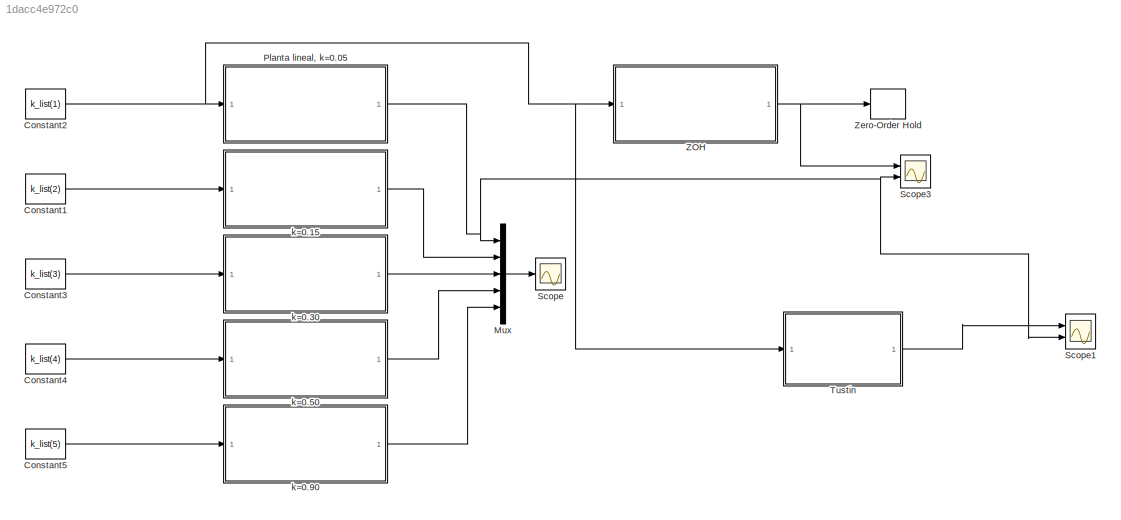
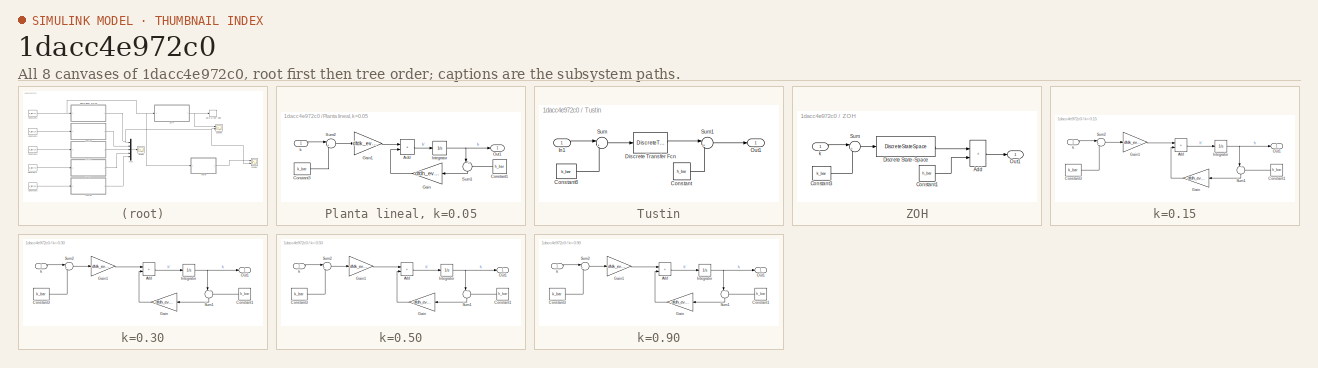
[diagram: thumbnail index - all 8 canvases of the model, root first then tree order]
MODEL slx_1dacc4e972c0
KIND model
CONFIG AbsTol = auto
CONFIG EnableMultiTasking = off
CONFIG FixedStep = auto
CONFIG MaxStep = auto
CONFIG MinStep = auto
CONFIG RelTol = 1e-3
CONFIG SampleTimeConstraint = Unconstrained
CONFIG SolverName = VariableStepAuto
CONFIG StartTime = 0.0
CONFIG StopTime = 60.0
BLOCK [Constant] Constant1
  Value = k_list(2)
BLOCK [Constant] Constant2
  Value = k_list(1)
BLOCK [Constant] Constant3
  Value = k_list(3)
BLOCK [Constant] Constant4
  Value = k_list(4)
BLOCK [Constant] Constant5
  Value = k_list(5)
BLOCK [Mux] Mux
  DisplayOption = bar
  Inputs = 5
  Ports = [5, 1]
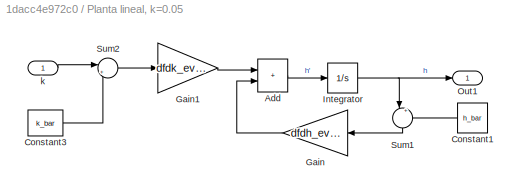
BLOCK [SubSystem] Planta lineal, k=0.05
  Ports = [1, 1]
  RequestExecContextInheritance = off
BLOCK [Sum] Planta lineal, k=0.05/Add
  IconShape = rectangular
  Ports = [2, 1]
BLOCK [Constant] Planta lineal, k=0.05/Constant1
  NameLocation = top
  Value = h_bar
BLOCK [Constant] Planta lineal, k=0.05/Constant3
  Value = k_bar
BLOCK [Gain] Planta lineal, k=0.05/Gain
  Gain = dfdh_eval
  NameLocation = top
BLOCK [Gain] Planta lineal, k=0.05/Gain1
  Gain = dfdk_eval
BLOCK [Integrator] Planta lineal, k=0.05/Integrator
  InitialCondition = h_bar
  Ports = [1, 1]
BLOCK [Outport] Planta lineal, k=0.05/Out1
BLOCK [Sum] Planta lineal, k=0.05/Sum1
  Inputs = |+-
  NameLocation = left
  Ports = [2, 1]
BLOCK [Sum] Planta lineal, k=0.05/Sum2
  Inputs = |+-
  Ports = [2, 1]
BLOCK [Inport] Planta lineal, k=0.05/k
BLOCK [Scope] Scope
  Floating = off
  NumInputPorts = 1
  Ports = [1]
  ScopeSpecificationString = Simulink.scopes.TimeScopeBlockCfg('CurrentConfiguration', extmgr.ConfigurationSet(extmgr.Configuration('Core','General UI',true),extmgr.Configuration('Core','Source UI',true),extmgr.Configuration('Sources','WiredSimulink',true),extmgr.Configuration('Visuals','Time Domain',true,'SerializedDisplays',{struct('MinYLimReal','0.24209','MaxYLimReal','0.99819','YLabelReal','','MinYLimMag','0.24209','MaxYL...<+1810ch>
BLOCK [Scope] Scope1
  Floating = off
  NumInputPorts = 2
  Ports = [2]
  ScopeSpecificationString = Simulink.scopes.TimeScopeBlockCfg('CurrentConfiguration', extmgr.ConfigurationSet(extmgr.Configuration('Core','General UI',true),extmgr.Configuration('Core','Source UI',true),extmgr.Configuration('Sources','WiredSimulink',true,'DataLoggingVariableName','ScopeData1'),extmgr.Configuration('Visuals','Time Domain',true,'SerializedDisplays',{struct('MinYLimReal','0.55912','MaxYLimReal','0.96791','YLabe...<+1459ch>
BLOCK [Scope] Scope3
  Floating = off
  NumInputPorts = 2
  Ports = [2]
  ScopeSpecificationString = Simulink.scopes.TimeScopeBlockCfg('CurrentConfiguration', extmgr.ConfigurationSet(extmgr.Configuration('Core','General UI',true),extmgr.Configuration('Core','Source UI',true),extmgr.Configuration('Sources','WiredSimulink',true,'DataLoggingVariableName','ScopeData3'),extmgr.Configuration('Visuals','Time Domain',true,'SerializedDisplays',{struct('MinYLimReal','0.55968','MaxYLimReal','0.9629','YLabel...<+1407ch>
BLOCK [SubSystem] Tustin
  Ports = [1, 1]
  RequestExecContextInheritance = off
BLOCK [Constant] Tustin/Constant
  Value = h_bar
BLOCK [Constant] Tustin/Constant6
  Value = k_bar
BLOCK [DiscreteTransferFcn] Tustin/Discrete Transfer Fcn
  Denominator = den
  InputPortMap = u0
  Numerator = num
  Ports = [1, 1]
  SampleTime = 2
BLOCK [Inport] Tustin/In1
BLOCK [Outport] Tustin/Out1
BLOCK [Sum] Tustin/Sum
  Inputs = |+-
  Ports = [2, 1]
BLOCK [Sum] Tustin/Sum1
  Inputs = |++
  Ports = [2, 1]
BLOCK [SubSystem] ZOH
  Ports = [1, 1]
  RequestExecContextInheritance = off
BLOCK [Sum] ZOH/Add
  IconShape = rectangular
  Ports = [2, 1]
BLOCK [Constant] ZOH/Constant1
  Value = h_bar
BLOCK [Constant] ZOH/Constant3
  Value = k_bar
BLOCK [DiscreteStateSpace] ZOH/Discrete State-Space
  A = A_d
  B = B_d
  D = 0
  SampleTime = Ts
BLOCK [Outport] ZOH/Out1
BLOCK [Sum] ZOH/Sum
  Inputs = |+-
  Ports = [2, 1]
BLOCK [Inport] ZOH/k
BLOCK [ZeroOrderHold] Zero-Order Hold
  Commented = on
  SampleTime = T
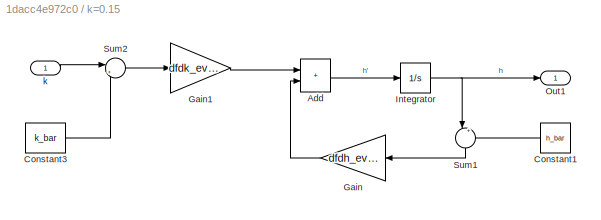
BLOCK [SubSystem] k=0.15
  Ports = [1, 1]
  RequestExecContextInheritance = off
BLOCK [Sum] k=0.15/Add
  IconShape = rectangular
  Ports = [2, 1]
BLOCK [Constant] k=0.15/Constant1
  NameLocation = top
  Value = h_bar
BLOCK [Constant] k=0.15/Constant3
  Value = k_bar
BLOCK [Gain] k=0.15/Gain
  Gain = dfdh_eval
  NameLocation = top
BLOCK [Gain] k=0.15/Gain1
  Gain = dfdk_eval
BLOCK [Integrator] k=0.15/Integrator
  InitialCondition = h_bar
  Ports = [1, 1]
BLOCK [Outport] k=0.15/Out1
BLOCK [Sum] k=0.15/Sum1
  Inputs = |+-
  NameLocation = left
  Ports = [2, 1]
BLOCK [Sum] k=0.15/Sum2
  Inputs = |+-
  Ports = [2, 1]
BLOCK [Inport] k=0.15/k
BLOCK [SubSystem] k=0.30
  Ports = [1, 1]
  RequestExecContextInheritance = off
BLOCK [Sum] k=0.30/Add
  IconShape = rectangular
  Ports = [2, 1]
BLOCK [Constant] k=0.30/Constant1
  NameLocation = top
  Value = h_bar
BLOCK [Constant] k=0.30/Constant3
  Value = k_bar
BLOCK [Gain] k=0.30/Gain
  Gain = dfdh_eval
  NameLocation = top
BLOCK [Gain] k=0.30/Gain1
  Gain = dfdk_eval
BLOCK [Integrator] k=0.30/Integrator
  InitialCondition = h_bar
  Ports = [1, 1]
BLOCK [Outport] k=0.30/Out1
BLOCK [Sum] k=0.30/Sum1
  Inputs = |+-
  NameLocation = left
  Ports = [2, 1]
BLOCK [Sum] k=0.30/Sum2
  Inputs = |+-
  Ports = [2, 1]
BLOCK [Inport] k=0.30/k
BLOCK [SubSystem] k=0.50
  Ports = [1, 1]
  RequestExecContextInheritance = off
BLOCK [Sum] k=0.50/Add
  IconShape = rectangular
  Ports = [2, 1]
BLOCK [Constant] k=0.50/Constant1
  NameLocation = top
  Value = h_bar
BLOCK [Constant] k=0.50/Constant3
  Value = k_bar
BLOCK [Gain] k=0.50/Gain
  Gain = dfdh_eval
  NameLocation = top
BLOCK [Gain] k=0.50/Gain1
  Gain = dfdk_eval
BLOCK [Integrator] k=0.50/Integrator
  InitialCondition = h_bar
  Ports = [1, 1]
BLOCK [Outport] k=0.50/Out1
BLOCK [Sum] k=0.50/Sum1
  Inputs = |+-
  NameLocation = left
  Ports = [2, 1]
BLOCK [Sum] k=0.50/Sum2
  Inputs = |+-
  Ports = [2, 1]
BLOCK [Inport] k=0.50/k
BLOCK [SubSystem] k=0.90
  Ports = [1, 1]
  RequestExecContextInheritance = off
BLOCK [Sum] k=0.90/Add
  IconShape = rectangular
  Ports = [2, 1]
BLOCK [Constant] k=0.90/Constant1
  NameLocation = top
  Value = h_bar
BLOCK [Constant] k=0.90/Constant3
  Value = k_bar
BLOCK [Gain] k=0.90/Gain
  Gain = dfdh_eval
  NameLocation = top
BLOCK [Gain] k=0.90/Gain1
  Gain = dfdk_eval
BLOCK [Integrator] k=0.90/Integrator
  InitialCondition = h_bar
  Ports = [1, 1]
BLOCK [Outport] k=0.90/Out1
BLOCK [Sum] k=0.90/Sum1
  Inputs = |+-
  NameLocation = left
  Ports = [2, 1]
BLOCK [Sum] k=0.90/Sum2
  Inputs = |+-
  Ports = [2, 1]
BLOCK [Inport] k=0.90/k
LINE Constant1:1 -> k=0.15:1
NET Constant2:1 -> Planta lineal, k=0.05:1, Tustin:1, ZOH:1
LINE Constant3:1 -> k=0.30:1
LINE Constant4:1 -> k=0.50:1
LINE Constant5:1 -> k=0.90:1
LINE Mux:1 -> Scope:1
LINE Planta lineal, k=0.05/Add:1 -> Planta lineal, k=0.05/Integrator:1
LINE Planta lineal, k=0.05/Constant1:1 -> Planta lineal, k=0.05/Sum1:2
LINE Planta lineal, k=0.05/Constant3:1 -> Planta lineal, k=0.05/Sum2:2
LINE Planta lineal, k=0.05/Gain1:1 -> Planta lineal, k=0.05/Add:1
LINE Planta lineal, k=0.05/Gain:1 -> Planta lineal, k=0.05/Add:2
NET Planta lineal, k=0.05/Integrator:1 -> Planta lineal, k=0.05/Out1:1, Planta lineal, k=0.05/Sum1:1
LINE Planta lineal, k=0.05/Sum1:1 -> Planta lineal, k=0.05/Gain:1
LINE Planta lineal, k=0.05/Sum2:1 -> Planta lineal, k=0.05/Gain1:1
LINE Planta lineal, k=0.05/k:1 -> Planta lineal, k=0.05/Sum2:1
NET Planta lineal, k=0.05:1 -> Mux:1, Scope1:2, Scope3:2
LINE Tustin/Constant6:1 -> Tustin/Sum:2
LINE Tustin/Constant:1 -> Tustin/Sum1:2
LINE Tustin/Discrete Transfer Fcn:1 -> Tustin/Sum1:1
LINE Tustin/In1:1 -> Tustin/Sum:1
LINE Tustin/Sum1:1 -> Tustin/Out1:1
LINE Tustin/Sum:1 -> Tustin/Discrete Transfer Fcn:1
LINE Tustin:1 -> Scope1:1
LINE ZOH/Add:1 -> ZOH/Out1:1
LINE ZOH/Constant1:1 -> ZOH/Add:2
LINE ZOH/Constant3:1 -> ZOH/Sum:2
LINE ZOH/Discrete State-Space:1 -> ZOH/Add:1
LINE ZOH/Sum:1 -> ZOH/Discrete State-Space:1
LINE ZOH/k:1 -> ZOH/Sum:1
NET ZOH:1 -> Scope3:1, Zero-Order Hold:1
LINE k=0.15/Add:1 -> k=0.15/Integrator:1
LINE k=0.15/Constant1:1 -> k=0.15/Sum1:2
LINE k=0.15/Constant3:1 -> k=0.15/Sum2:2
LINE k=0.15/Gain1:1 -> k=0.15/Add:1
LINE k=0.15/Gain:1 -> k=0.15/Add:2
NET k=0.15/Integrator:1 -> k=0.15/Out1:1, k=0.15/Sum1:1
LINE k=0.15/Sum1:1 -> k=0.15/Gain:1
LINE k=0.15/Sum2:1 -> k=0.15/Gain1:1
LINE k=0.15/k:1 -> k=0.15/Sum2:1
LINE k=0.15:1 -> Mux:2
LINE k=0.30/Add:1 -> k=0.30/Integrator:1
LINE k=0.30/Constant1:1 -> k=0.30/Sum1:2
LINE k=0.30/Constant3:1 -> k=0.30/Sum2:2
LINE k=0.30/Gain1:1 -> k=0.30/Add:1
LINE k=0.30/Gain:1 -> k=0.30/Add:2
NET k=0.30/Integrator:1 -> k=0.30/Out1:1, k=0.30/Sum1:1
LINE k=0.30/Sum1:1 -> k=0.30/Gain:1
LINE k=0.30/Sum2:1 -> k=0.30/Gain1:1
LINE k=0.30/k:1 -> k=0.30/Sum2:1
LINE k=0.30:1 -> Mux:3
LINE k=0.50/Add:1 -> k=0.50/Integrator:1
LINE k=0.50/Constant1:1 -> k=0.50/Sum1:2
LINE k=0.50/Constant3:1 -> k=0.50/Sum2:2
LINE k=0.50/Gain1:1 -> k=0.50/Add:1
LINE k=0.50/Gain:1 -> k=0.50/Add:2
NET k=0.50/Integrator:1 -> k=0.50/Out1:1, k=0.50/Sum1:1
LINE k=0.50/Sum1:1 -> k=0.50/Gain:1
LINE k=0.50/Sum2:1 -> k=0.50/Gain1:1
LINE k=0.50/k:1 -> k=0.50/Sum2:1
LINE k=0.50:1 -> Mux:4
LINE k=0.90/Add:1 -> k=0.90/Integrator:1
LINE k=0.90/Constant1:1 -> k=0.90/Sum1:2
LINE k=0.90/Constant3:1 -> k=0.90/Sum2:2
LINE k=0.90/Gain1:1 -> k=0.90/Add:1
LINE k=0.90/Gain:1 -> k=0.90/Add:2
NET k=0.90/Integrator:1 -> k=0.90/Out1:1, k=0.90/Sum1:1
LINE k=0.90/Sum1:1 -> k=0.90/Gain:1
LINE k=0.90/Sum2:1 -> k=0.90/Gain1:1
LINE k=0.90/k:1 -> k=0.90/Sum2:1
LINE k=0.90:1 -> Mux:5
note: NET lines group one-source signal fan-out (src -> all destinations, sorted); 1:1 wires keep LINE
